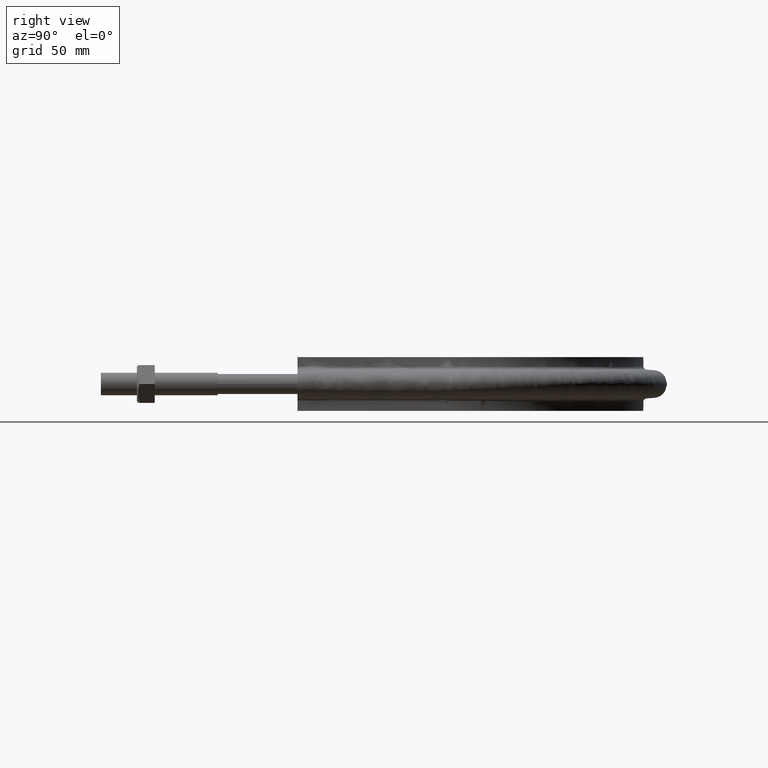
[diagram: clean part render]
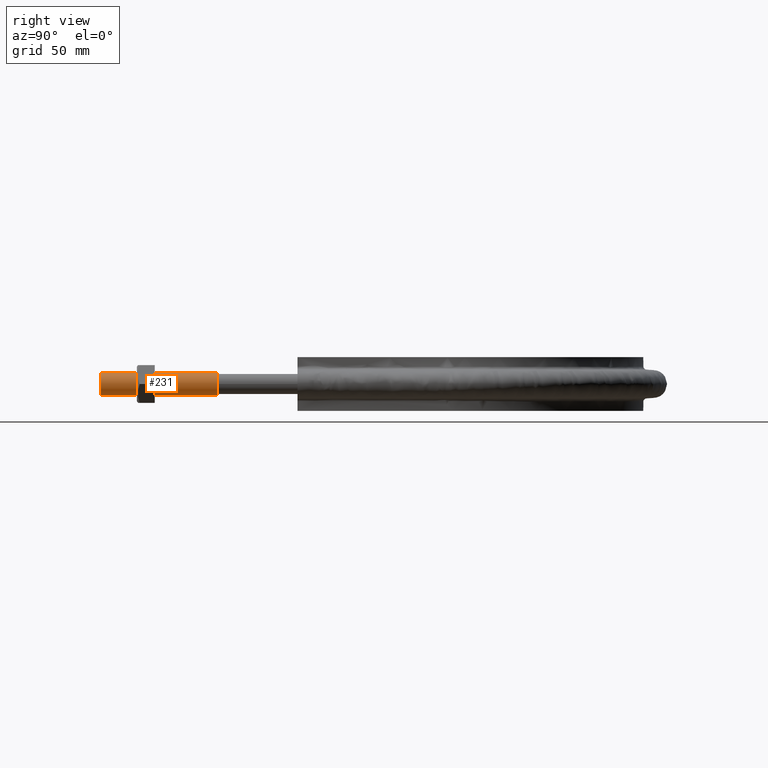
[diagram: same view with one face highlighted and labeled with its STEP entity id]
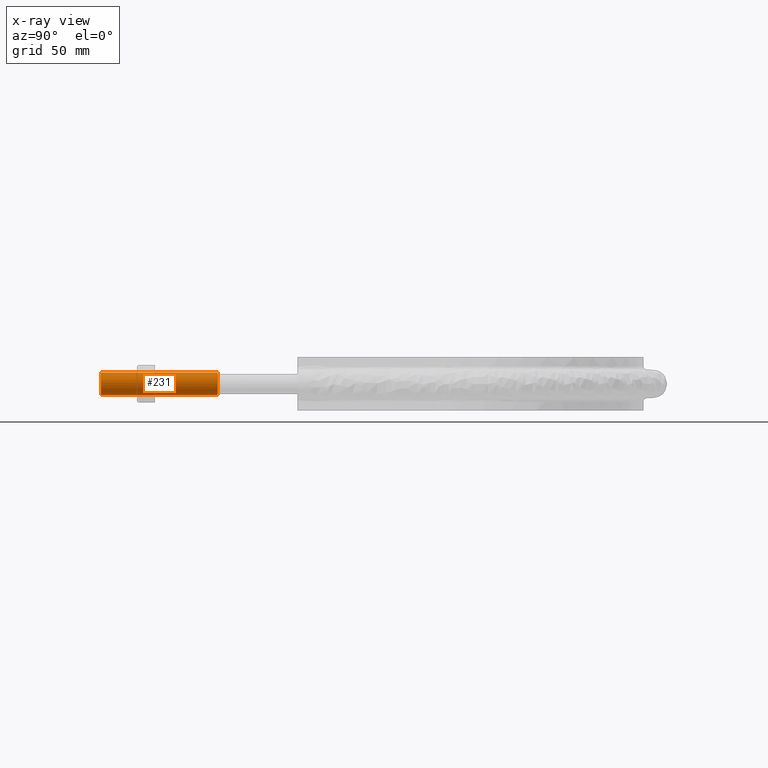
[diagram: x-ray of the same camera — body ghosted, the highlighted face saturated]
A machine part, right view. The second image highlights one B-rep face of the part: STEP entity #231.
The next image is the same camera in x-ray: the body ghosted, the highlighted face saturated — about 0% of this face is hidden behind the body in this view.
In plain terms, the highlighted cylindrical surface (bore or boss wall) has radius 6.25 mm, axis along (-0, -1, 0).
Its self-contained STEP definition (entity closure, byte-faithful):
#231 = ADVANCED_FACE( '', ( #291, #292 ), #293, .T. );
#291 = FACE_OUTER_BOUND( '', #1292, .T. );
#292 = FACE_OUTER_BOUND( '', #1293, .T. );
#293 = CYLINDRICAL_SURFACE( '', #1294, 6.25000000000003 );
#1292 = EDGE_LOOP( '', ( #1470 ) );
#1293 = EDGE_LOOP( '', ( #1471 ) );
#1294 = AXIS2_PLACEMENT_3D( '', #1472, #1473, #1474 );
#1470 = ORIENTED_EDGE( '', *, *, #1686, .F. );
#1471 = ORIENTED_EDGE( '', *, *, #1676, .T. );
#1472 = CARTESIAN_POINT( '', ( 116.000000000000, 370.000000000000, 0.000000000000000 ) );
#1473 = DIRECTION( '', ( -1.83690953073357E-016, -1.00000000000000, 0.000000000000000 ) );
#1474 = DIRECTION( '', ( -1.00000000000000, 1.83690953073357E-016, 0.000000000000000 ) );
#1676 = EDGE_CURVE( '', #1777, #1777, #1778, .T. );
#1686 = EDGE_CURVE( '', #1797, #1797, #1798, .F. );
#1777 = VERTEX_POINT( '', #2099 );
#1778 = CIRCLE( '', #2100, 6.25000000000003 );
#1797 = VERTEX_POINT( '', #2143 );
#1798 = CIRCLE( '', #2144, 6.25000000000003 );
#2099 = CARTESIAN_POINT( '', ( 116.000000000000, -2.10889789006240E-031, 6.25000000000003 ) );
#2100 = AXIS2_PLACEMENT_3D( '', #2394, #2395, #2396 );
#2143 = CARTESIAN_POINT( '', ( 122.250000000000, 65.0000000000000, 0.000000000000000 ) );
#2144 = AXIS2_PLACEMENT_3D( '', #2400, #2401, #2402 );
#2394 = CARTESIAN_POINT( '', ( 116.000000000000, 0.000000000000000, 0.000000000000000 ) );
#2395 = DIRECTION( '', ( 2.09140834898085E-079, 1.00000000000000, 3.37423662409982E-032 ) );
#2396 = DIRECTION( '', ( 0.000000000000000, -3.37423662409982E-032, 1.00000000000000 ) );
#2400 = CARTESIAN_POINT( '', ( 116.000000000000, 65.0000000000000, 0.000000000000000 ) );
#2401 = DIRECTION( '', ( -1.83690953073357E-016, -1.00000000000000, 0.000000000000000 ) );
#2402 = DIRECTION( '', ( 1.00000000000000, -1.83690953073357E-016, 0.000000000000000 ) );